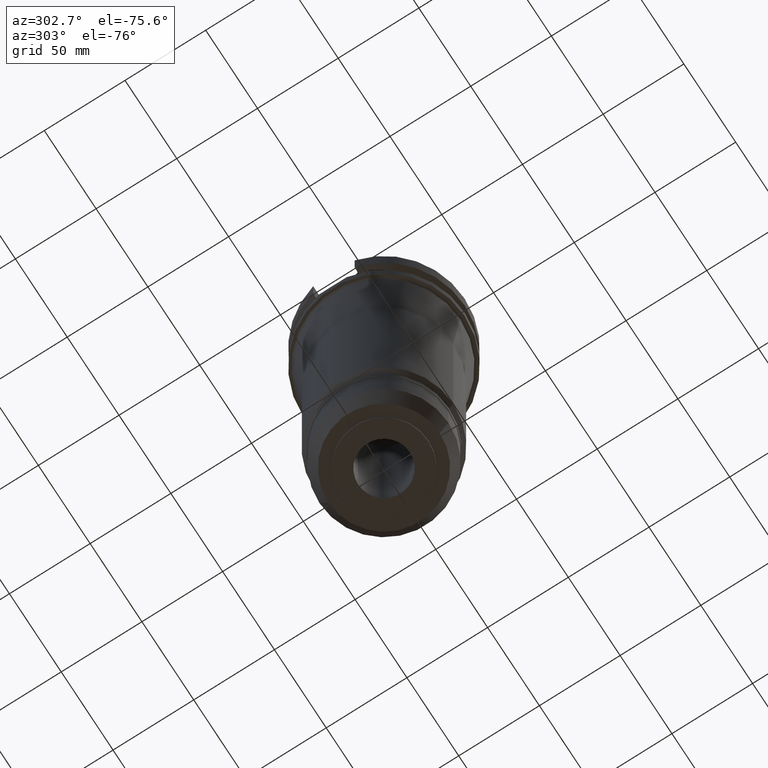
[diagram: clean part render]
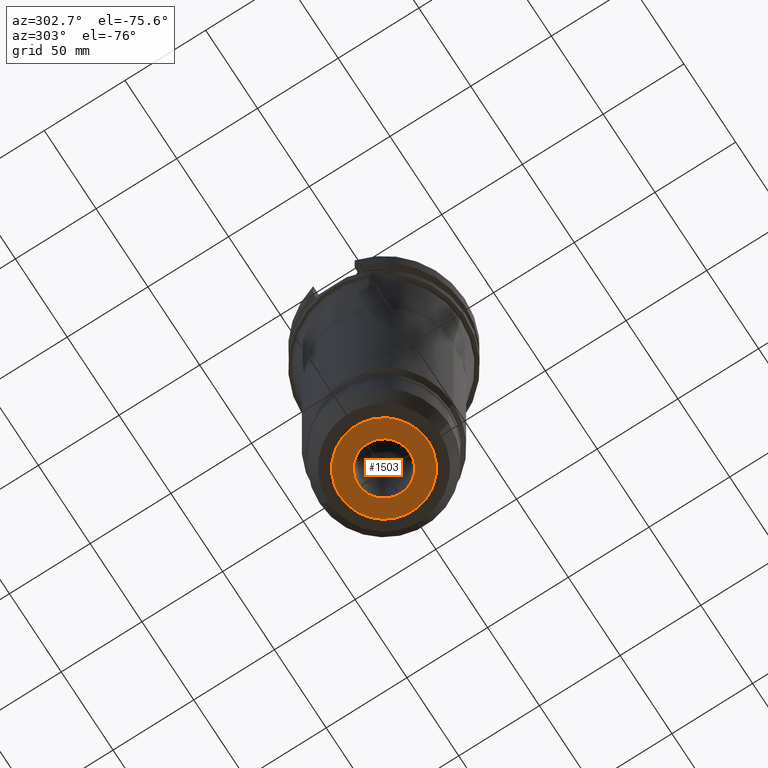
[diagram: same view with one face highlighted and labeled with its STEP entity id]
A machine part, auxiliary view. The second image highlights one B-rep face of the part: STEP entity #1503.
In plain terms, the highlighted planar face has unit normal (0, 0, -1).
Its self-contained STEP definition (entity closure, byte-faithful):
#200=CARTESIAN_POINT('',(0.E0,2.688222188808E-14,-2.524E2));
#201=DIRECTION('',(0.E0,0.E0,1.E0));
#202=DIRECTION('',(0.E0,-1.E0,0.E0));
#203=AXIS2_PLACEMENT_3D('',#200,#201,#202);
#208=CARTESIAN_POINT('',(0.E0,2.688222188808E-14,-2.524E2));
#209=DIRECTION('',(0.E0,0.E0,1.E0));
#210=DIRECTION('',(0.E0,1.E0,0.E0));
#211=AXIS2_PLACEMENT_3D('',#208,#209,#210);
#216=CARTESIAN_POINT('',(0.E0,2.688222188808E-14,-2.524E2));
#217=DIRECTION('',(0.E0,0.E0,-1.E0));
#218=DIRECTION('',(0.E0,-1.E0,0.E0));
#219=AXIS2_PLACEMENT_3D('',#216,#217,#218);
#224=CARTESIAN_POINT('',(0.E0,2.688222188808E-14,-2.524E2));
#225=DIRECTION('',(0.E0,0.E0,-1.E0));
#226=DIRECTION('',(0.E0,1.E0,0.E0));
#227=AXIS2_PLACEMENT_3D('',#224,#225,#226);
#1157=CARTESIAN_POINT('',(0.E0,1.6E1,-2.524E2));
#1158=VERTEX_POINT('',#1157);
#1159=CARTESIAN_POINT('',(0.E0,-1.6E1,-2.524E2));
#1160=VERTEX_POINT('',#1159);
#1161=CARTESIAN_POINT('',(0.E0,-2.735E1,-2.524E2));
#1162=CARTESIAN_POINT('',(0.E0,2.735E1,-2.524E2));
#1163=VERTEX_POINT('',#1161);
#1164=VERTEX_POINT('',#1162);
#1488=CARTESIAN_POINT('',(0.E0,-1.866361721901E-14,-2.524E2));
#1489=DIRECTION('',(0.E0,0.E0,-1.E0));
#1490=DIRECTION('',(0.E0,-1.E0,0.E0));
#1491=AXIS2_PLACEMENT_3D('',#1488,#1489,#1490);
#1492=PLANE('',#1491);
#1494=ORIENTED_EDGE('',*,*,#1493,.T.);
#1496=ORIENTED_EDGE('',*,*,#1495,.T.);
#1497=EDGE_LOOP('',(#1494,#1496));
#1498=FACE_OUTER_BOUND('',#1497,.F.);
#1499=ORIENTED_EDGE('',*,*,#1481,.T.);
#1500=ORIENTED_EDGE('',*,*,#1470,.T.);
#1501=EDGE_LOOP('',(#1499,#1500));
#1502=FACE_BOUND('',#1501,.F.);
#204=CIRCLE('',#203,2.735E1);
#212=CIRCLE('',#211,2.735E1);
#220=CIRCLE('',#219,1.6E1);
#228=CIRCLE('',#227,1.6E1);
#1470=EDGE_CURVE('',#1158,#1160,#228,.T.);
#1481=EDGE_CURVE('',#1160,#1158,#220,.T.);
#1493=EDGE_CURVE('',#1163,#1164,#204,.T.);
#1495=EDGE_CURVE('',#1164,#1163,#212,.T.);
#1503=ADVANCED_FACE('',(#1498,#1502),#1492,.T.);